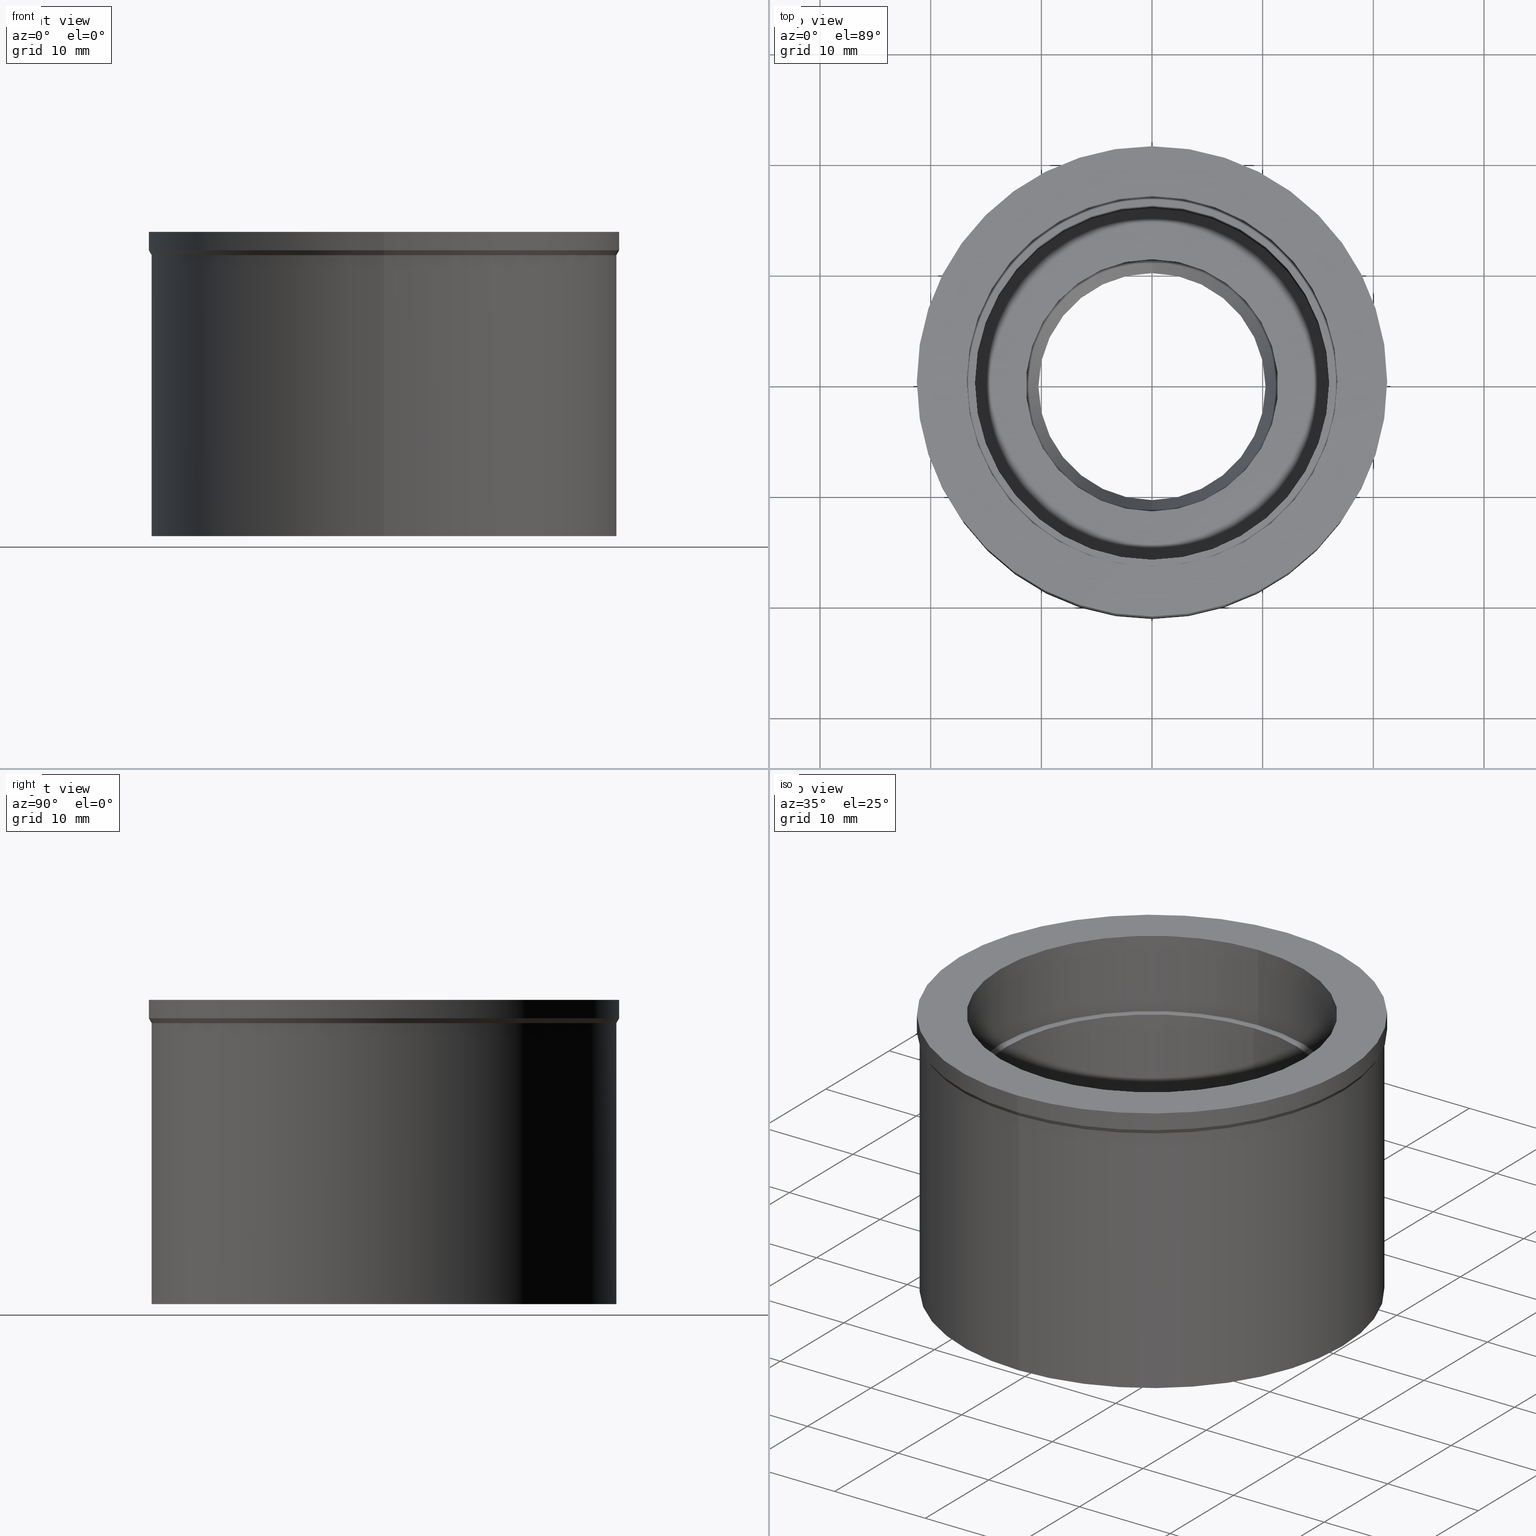
[diagram: canonical four-view strip — front | top / right | iso, engineering-drawing reading convention]
A machine part, canonical four-view strip (front | top / right | iso — engineering-drawing reading convention). The complete STEP part file that produces these views, byte-faithful:
ISO-10303-21;
HEADER;
FILE_DESCRIPTION((''),'2;1');
FILE_NAME('MERN25','2018-05-14T',('ykawabe'),(''),
'CREO PARAMETRIC BY PTC INC, 2016380','CREO PARAMETRIC BY PTC INC, 2016380','');
FILE_SCHEMA(('AUTOMOTIVE_DESIGN { 1 0 10303 214 1 1 1 1 }'));
ENDSEC;
DATA;
#17=DIRECTION('',(0.E0,0.E0,1.E0));
#18=VECTOR('',#17,7.5E0);
#19=CARTESIAN_POINT('',(0.E0,1.675E1,-7.5E0));
#20=LINE('',#19,#18);
#21=DRAUGHTING_PRE_DEFINED_CURVE_FONT('continuous');
#22=CURVE_STYLE('',#21,POSITIVE_LENGTH_MEASURE(2.E-2),#3);
#23=PRESENTATION_STYLE_ASSIGNMENT((#22));
#24=STYLED_ITEM('',(#23),#20);
#25=DIRECTION('',(0.E0,0.E0,1.E0));
#26=VECTOR('',#25,7.5E0);
#27=CARTESIAN_POINT('',(0.E0,-1.675E1,-7.5E0));
#28=LINE('',#27,#26);
#29=CURVE_STYLE('',#21,POSITIVE_LENGTH_MEASURE(2.E-2),#3);
#30=PRESENTATION_STYLE_ASSIGNMENT((#29));
#31=STYLED_ITEM('',(#30),#28);
#32=CARTESIAN_POINT('',(0.E0,0.E0,-7.5E0));
#33=DIRECTION('',(0.E0,0.E0,-1.E0));
#34=DIRECTION('',(0.E0,-1.E0,0.E0));
#35=AXIS2_PLACEMENT_3D('',#32,#33,#34);
#37=CURVE_STYLE('',#21,POSITIVE_LENGTH_MEASURE(2.E-2),#3);
#38=PRESENTATION_STYLE_ASSIGNMENT((#37));
#39=STYLED_ITEM('',(#38),#36);
#40=CARTESIAN_POINT('',(0.E0,0.E0,-7.5E0));
#41=DIRECTION('',(0.E0,0.E0,-1.E0));
#42=DIRECTION('',(0.E0,1.E0,0.E0));
#43=AXIS2_PLACEMENT_3D('',#40,#41,#42);
#45=CURVE_STYLE('',#21,POSITIVE_LENGTH_MEASURE(2.E-2),#3);
#46=PRESENTATION_STYLE_ASSIGNMENT((#45));
#47=STYLED_ITEM('',(#46),#44);
#48=CARTESIAN_POINT('',(0.E0,0.E0,-7.5E0));
#49=DIRECTION('',(0.E0,0.E0,1.E0));
#50=DIRECTION('',(0.E0,-1.E0,0.E0));
#51=AXIS2_PLACEMENT_3D('',#48,#49,#50);
#53=CURVE_STYLE('',#21,POSITIVE_LENGTH_MEASURE(2.E-2),#3);
#54=PRESENTATION_STYLE_ASSIGNMENT((#53));
#55=STYLED_ITEM('',(#54),#52);
#56=CARTESIAN_POINT('',(0.E0,0.E0,-7.5E0));
#57=DIRECTION('',(0.E0,0.E0,1.E0));
#58=DIRECTION('',(0.E0,1.E0,0.E0));
#59=AXIS2_PLACEMENT_3D('',#56,#57,#58);
#61=CURVE_STYLE('',#21,POSITIVE_LENGTH_MEASURE(2.E-2),#3);
#62=PRESENTATION_STYLE_ASSIGNMENT((#61));
#63=STYLED_ITEM('',(#62),#60);
#64=DIRECTION('',(0.E0,0.E0,1.E0));
#65=VECTOR('',#64,1.3E1);
#66=CARTESIAN_POINT('',(0.E0,1.6E1,-2.05E1));
#67=LINE('',#66,#65);
#68=CURVE_STYLE('',#21,POSITIVE_LENGTH_MEASURE(2.E-2),#3);
#69=PRESENTATION_STYLE_ASSIGNMENT((#68));
#70=STYLED_ITEM('',(#69),#67);
#71=DIRECTION('',(0.E0,0.E0,1.E0));
#72=VECTOR('',#71,1.3E1);
#73=CARTESIAN_POINT('',(0.E0,-1.6E1,-2.05E1));
#74=LINE('',#73,#72);
#75=CURVE_STYLE('',#21,POSITIVE_LENGTH_MEASURE(2.E-2),#3);
#76=PRESENTATION_STYLE_ASSIGNMENT((#75));
#77=STYLED_ITEM('',(#76),#74);
#78=CARTESIAN_POINT('',(0.E0,0.E0,-2.05E1));
#79=DIRECTION('',(0.E0,0.E0,-1.E0));
#80=DIRECTION('',(0.E0,-1.E0,0.E0));
#81=AXIS2_PLACEMENT_3D('',#78,#79,#80);
#83=CURVE_STYLE('',#21,POSITIVE_LENGTH_MEASURE(2.E-2),#3);
#84=PRESENTATION_STYLE_ASSIGNMENT((#83));
#85=STYLED_ITEM('',(#84),#82);
#86=CARTESIAN_POINT('',(0.E0,0.E0,-2.05E1));
#87=DIRECTION('',(0.E0,0.E0,-1.E0));
#88=DIRECTION('',(0.E0,1.E0,0.E0));
#89=AXIS2_PLACEMENT_3D('',#86,#87,#88);
#91=CURVE_STYLE('',#21,POSITIVE_LENGTH_MEASURE(2.E-2),#3);
#92=PRESENTATION_STYLE_ASSIGNMENT((#91));
#93=STYLED_ITEM('',(#92),#90);
#94=CARTESIAN_POINT('',(0.E0,0.E0,-2.05E1));
#95=DIRECTION('',(0.E0,0.E0,1.E0));
#96=DIRECTION('',(0.E0,-1.E0,0.E0));
#97=AXIS2_PLACEMENT_3D('',#94,#95,#96);
#99=CURVE_STYLE('',#21,POSITIVE_LENGTH_MEASURE(2.E-2),#3);
#100=PRESENTATION_STYLE_ASSIGNMENT((#99));
#101=STYLED_ITEM('',(#100),#98);
#102=CARTESIAN_POINT('',(0.E0,0.E0,-2.05E1));
#103=DIRECTION('',(0.E0,0.E0,1.E0));
#104=DIRECTION('',(0.E0,1.E0,0.E0));
#105=AXIS2_PLACEMENT_3D('',#102,#103,#104);
#107=CURVE_STYLE('',#21,POSITIVE_LENGTH_MEASURE(2.E-2),#3);
#108=PRESENTATION_STYLE_ASSIGNMENT((#107));
#109=STYLED_ITEM('',(#108),#106);
#110=DIRECTION('',(0.E0,0.E0,1.E0));
#111=VECTOR('',#110,1.3E0);
#112=CARTESIAN_POINT('',(0.E0,1.14E1,-2.18E1));
#113=LINE('',#112,#111);
#114=CURVE_STYLE('',#21,POSITIVE_LENGTH_MEASURE(2.E-2),#3);
#115=PRESENTATION_STYLE_ASSIGNMENT((#114));
#116=STYLED_ITEM('',(#115),#113);
#117=DIRECTION('',(0.E0,0.E0,1.E0));
#118=VECTOR('',#117,1.3E0);
#119=CARTESIAN_POINT('',(0.E0,-1.14E1,-2.18E1));
#120=LINE('',#119,#118);
#121=CURVE_STYLE('',#21,POSITIVE_LENGTH_MEASURE(2.E-2),#3);
#122=PRESENTATION_STYLE_ASSIGNMENT((#121));
#123=STYLED_ITEM('',(#122),#120);
#124=CARTESIAN_POINT('',(0.E0,0.E0,-2.18E1));
#125=DIRECTION('',(0.E0,0.E0,1.E0));
#126=DIRECTION('',(0.E0,-1.E0,0.E0));
#127=AXIS2_PLACEMENT_3D('',#124,#125,#126);
#129=CURVE_STYLE('',#21,POSITIVE_LENGTH_MEASURE(2.E-2),#3);
#130=PRESENTATION_STYLE_ASSIGNMENT((#129));
#131=STYLED_ITEM('',(#130),#128);
#132=CARTESIAN_POINT('',(0.E0,0.E0,-2.18E1));
#133=DIRECTION('',(0.E0,0.E0,1.E0));
#134=DIRECTION('',(0.E0,1.E0,0.E0));
#135=AXIS2_PLACEMENT_3D('',#132,#133,#134);
#137=CURVE_STYLE('',#21,POSITIVE_LENGTH_MEASURE(2.E-2),#3);
#138=PRESENTATION_STYLE_ASSIGNMENT((#137));
#139=STYLED_ITEM('',(#138),#136);
#140=CARTESIAN_POINT('',(0.E0,0.E0,-2.18E1));
#141=DIRECTION('',(0.E0,0.E0,-1.E0));
#142=DIRECTION('',(0.E0,-1.E0,0.E0));
#143=AXIS2_PLACEMENT_3D('',#140,#141,#142);
#145=CURVE_STYLE('',#21,POSITIVE_LENGTH_MEASURE(2.E-2),#3);
#146=PRESENTATION_STYLE_ASSIGNMENT((#145));
#147=STYLED_ITEM('',(#146),#144);
#148=CARTESIAN_POINT('',(0.E0,0.E0,-2.18E1));
#149=DIRECTION('',(0.E0,0.E0,-1.E0));
#150=DIRECTION('',(0.E0,1.E0,0.E0));
#151=AXIS2_PLACEMENT_3D('',#148,#149,#150);
#153=CURVE_STYLE('',#21,POSITIVE_LENGTH_MEASURE(2.E-2),#3);
#154=PRESENTATION_STYLE_ASSIGNMENT((#153));
#155=STYLED_ITEM('',(#154),#152);
#156=DIRECTION('',(0.E0,0.E0,1.E0));
#157=VECTOR('',#156,1.25E0);
#158=CARTESIAN_POINT('',(0.E0,1.345E1,-2.305E1));
#159=LINE('',#158,#157);
#160=CURVE_STYLE('',#21,POSITIVE_LENGTH_MEASURE(2.E-2),#3);
#161=PRESENTATION_STYLE_ASSIGNMENT((#160));
#162=STYLED_ITEM('',(#161),#159);
#163=DIRECTION('',(0.E0,0.E0,1.E0));
#164=VECTOR('',#163,1.25E0);
#165=CARTESIAN_POINT('',(0.E0,-1.345E1,-2.305E1));
#166=LINE('',#165,#164);
#167=CURVE_STYLE('',#21,POSITIVE_LENGTH_MEASURE(2.E-2),#3);
#168=PRESENTATION_STYLE_ASSIGNMENT((#167));
#169=STYLED_ITEM('',(#168),#166);
#170=CARTESIAN_POINT('',(0.E0,0.E0,-2.305E1));
#171=DIRECTION('',(0.E0,0.E0,-1.E0));
#172=DIRECTION('',(0.E0,-1.E0,0.E0));
#173=AXIS2_PLACEMENT_3D('',#170,#171,#172);
#175=CURVE_STYLE('',#21,POSITIVE_LENGTH_MEASURE(2.E-2),#3);
#176=PRESENTATION_STYLE_ASSIGNMENT((#175));
#177=STYLED_ITEM('',(#176),#174);
#178=CARTESIAN_POINT('',(0.E0,0.E0,-2.305E1));
#179=DIRECTION('',(0.E0,0.E0,-1.E0));
#180=DIRECTION('',(0.E0,1.E0,0.E0));
#181=AXIS2_PLACEMENT_3D('',#178,#179,#180);
#183=CURVE_STYLE('',#21,POSITIVE_LENGTH_MEASURE(2.E-2),#3);
#184=PRESENTATION_STYLE_ASSIGNMENT((#183));
#185=STYLED_ITEM('',(#184),#182);
#186=CARTESIAN_POINT('',(0.E0,0.E0,-2.305E1));
#187=DIRECTION('',(0.E0,0.E0,1.E0));
#188=DIRECTION('',(0.E0,-1.E0,0.E0));
#189=AXIS2_PLACEMENT_3D('',#186,#187,#188);
#191=CURVE_STYLE('',#21,POSITIVE_LENGTH_MEASURE(2.E-2),#3);
#192=PRESENTATION_STYLE_ASSIGNMENT((#191));
#193=STYLED_ITEM('',(#192),#190);
#194=CARTESIAN_POINT('',(0.E0,0.E0,-2.305E1));
#195=DIRECTION('',(0.E0,0.E0,1.E0));
#196=DIRECTION('',(0.E0,1.E0,0.E0));
#197=AXIS2_PLACEMENT_3D('',#194,#195,#196);
#199=CURVE_STYLE('',#21,POSITIVE_LENGTH_MEASURE(2.E-2),#3);
#200=PRESENTATION_STYLE_ASSIGNMENT((#199));
#201=STYLED_ITEM('',(#200),#198);
#202=DIRECTION('',(0.E0,4.999999999998E-1,8.660254037846E-1));
#203=VECTOR('',#202,4.654597870205E0);
#204=CARTESIAN_POINT('',(0.E0,1.026320106490E1,-2.7081E1));
#205=LINE('',#204,#203);
#206=CURVE_STYLE('',#21,POSITIVE_LENGTH_MEASURE(2.E-2),#3);
#207=PRESENTATION_STYLE_ASSIGNMENT((#206));
#208=STYLED_ITEM('',(#207),#205);
#209=CARTESIAN_POINT('',(0.E0,0.E0,-2.7081E1));
#210=DIRECTION('',(0.E0,0.E0,1.E0));
#211=DIRECTION('',(0.E0,-1.E0,0.E0));
#212=AXIS2_PLACEMENT_3D('',#209,#210,#211);
#214=CURVE_STYLE('',#21,POSITIVE_LENGTH_MEASURE(2.E-2),#3);
#215=PRESENTATION_STYLE_ASSIGNMENT((#214));
#216=STYLED_ITEM('',(#215),#213);
#217=CARTESIAN_POINT('',(0.E0,0.E0,-2.7081E1));
#218=DIRECTION('',(0.E0,0.E0,1.E0));
#219=DIRECTION('',(0.E0,1.E0,0.E0));
#220=AXIS2_PLACEMENT_3D('',#217,#218,#219);
#222=CURVE_STYLE('',#21,POSITIVE_LENGTH_MEASURE(2.E-2),#3);
#223=PRESENTATION_STYLE_ASSIGNMENT((#222));
#224=STYLED_ITEM('',(#223),#221);
#225=DIRECTION('',(0.E0,-4.999999999998E-1,8.660254037846E-1));
#226=VECTOR('',#225,4.654597870205E0);
#227=CARTESIAN_POINT('',(0.E0,-1.026320106490E1,-2.7081E1));
#228=LINE('',#227,#226);
#229=CURVE_STYLE('',#21,POSITIVE_LENGTH_MEASURE(2.E-2),#3);
#230=PRESENTATION_STYLE_ASSIGNMENT((#229));
#231=STYLED_ITEM('',(#230),#228);
#232=DIRECTION('',(0.E0,1.521985931609E-12,1.E0));
#233=VECTOR('',#232,4.190000000004E-1);
#234=CARTESIAN_POINT('',(0.E0,-1.026320106490E1,-2.75E1));
#235=LINE('',#234,#233);
#236=CURVE_STYLE('',#21,POSITIVE_LENGTH_MEASURE(2.E-2),#3);
#237=PRESENTATION_STYLE_ASSIGNMENT((#236));
#238=STYLED_ITEM('',(#237),#235);
#239=DIRECTION('',(0.E0,-1.521985931609E-12,1.E0));
#240=VECTOR('',#239,4.190000000004E-1);
#241=CARTESIAN_POINT('',(0.E0,1.026320106490E1,-2.75E1));
#242=LINE('',#241,#240);
#243=CURVE_STYLE('',#21,POSITIVE_LENGTH_MEASURE(2.E-2),#3);
#244=PRESENTATION_STYLE_ASSIGNMENT((#243));
#245=STYLED_ITEM('',(#244),#242);
#246=CARTESIAN_POINT('',(0.E0,0.E0,-2.75E1));
#247=DIRECTION('',(0.E0,0.E0,1.E0));
#248=DIRECTION('',(0.E0,-1.E0,0.E0));
#249=AXIS2_PLACEMENT_3D('',#246,#247,#248);
#251=CURVE_STYLE('',#21,POSITIVE_LENGTH_MEASURE(2.E-2),#3);
#252=PRESENTATION_STYLE_ASSIGNMENT((#251));
#253=STYLED_ITEM('',(#252),#250);
#254=CARTESIAN_POINT('',(0.E0,0.E0,-2.75E1));
#255=DIRECTION('',(0.E0,0.E0,1.E0));
#256=DIRECTION('',(0.E0,1.E0,0.E0));
#257=AXIS2_PLACEMENT_3D('',#254,#255,#256);
#259=CURVE_STYLE('',#21,POSITIVE_LENGTH_MEASURE(2.E-2),#3);
#260=PRESENTATION_STYLE_ASSIGNMENT((#259));
#261=STYLED_ITEM('',(#260),#258);
#262=CARTESIAN_POINT('',(0.E0,0.E0,-2.75E1));
#263=DIRECTION('',(0.E0,0.E0,-1.E0));
#264=DIRECTION('',(0.E0,-1.E0,0.E0));
#265=AXIS2_PLACEMENT_3D('',#262,#263,#264);
#267=CURVE_STYLE('',#21,POSITIVE_LENGTH_MEASURE(2.E-2),#3);
#268=PRESENTATION_STYLE_ASSIGNMENT((#267));
#269=STYLED_ITEM('',(#268),#266);
#270=CARTESIAN_POINT('',(0.E0,0.E0,-2.75E1));
#271=DIRECTION('',(0.E0,0.E0,-1.E0));
#272=DIRECTION('',(0.E0,1.E0,0.E0));
#273=AXIS2_PLACEMENT_3D('',#270,#271,#272);
#275=CURVE_STYLE('',#21,POSITIVE_LENGTH_MEASURE(2.E-2),#3);
#276=PRESENTATION_STYLE_ASSIGNMENT((#275));
#277=STYLED_ITEM('',(#276),#274);
#278=DIRECTION('',(0.E0,0.E0,-1.E0));
#279=VECTOR('',#278,2.54E1);
#280=CARTESIAN_POINT('',(0.E0,2.1E1,-2.1E0));
#281=LINE('',#280,#279);
#282=CURVE_STYLE('',#21,POSITIVE_LENGTH_MEASURE(2.E-2),#3);
#283=PRESENTATION_STYLE_ASSIGNMENT((#282));
#284=STYLED_ITEM('',(#283),#281);
#285=DIRECTION('',(0.E0,0.E0,-1.E0));
#286=VECTOR('',#285,2.54E1);
#287=CARTESIAN_POINT('',(0.E0,-2.1E1,-2.1E0));
#288=LINE('',#287,#286);
#289=CURVE_STYLE('',#21,POSITIVE_LENGTH_MEASURE(2.E-2),#3);
#290=PRESENTATION_STYLE_ASSIGNMENT((#289));
#291=STYLED_ITEM('',(#290),#288);
#292=CARTESIAN_POINT('',(0.E0,0.E0,-1.666987298108E0));
#293=DIRECTION('',(0.E0,0.E0,1.E0));
#294=DIRECTION('',(0.E0,1.E0,0.E0));
#295=AXIS2_PLACEMENT_3D('',#292,#293,#294);
#297=CURVE_STYLE('',#21,POSITIVE_LENGTH_MEASURE(2.E-2),#3);
#298=PRESENTATION_STYLE_ASSIGNMENT((#297));
#299=STYLED_ITEM('',(#298),#296);
#300=DIRECTION('',(0.E0,5.000000000001E-1,-8.660254037844E-1));
#301=VECTOR('',#300,4.999999999998E-1);
#302=CARTESIAN_POINT('',(0.E0,-2.125E1,-1.666987298108E0));
#303=LINE('',#302,#301);
#304=CURVE_STYLE('',#21,POSITIVE_LENGTH_MEASURE(2.E-2),#3);
#305=PRESENTATION_STYLE_ASSIGNMENT((#304));
#306=STYLED_ITEM('',(#305),#303);
#307=CARTESIAN_POINT('',(0.E0,0.E0,-2.1E0));
#308=DIRECTION('',(0.E0,0.E0,-1.E0));
#309=DIRECTION('',(0.E0,-1.E0,0.E0));
#310=AXIS2_PLACEMENT_3D('',#307,#308,#309);
#312=CURVE_STYLE('',#21,POSITIVE_LENGTH_MEASURE(2.E-2),#3);
#313=PRESENTATION_STYLE_ASSIGNMENT((#312));
#314=STYLED_ITEM('',(#313),#311);
#315=DIRECTION('',(0.E0,-5.000000000001E-1,-8.660254037844E-1));
#316=VECTOR('',#315,4.999999999998E-1);
#317=CARTESIAN_POINT('',(0.E0,2.125E1,-1.666987298108E0));
#318=LINE('',#317,#316);
#319=CURVE_STYLE('',#21,POSITIVE_LENGTH_MEASURE(2.E-2),#3);
#320=PRESENTATION_STYLE_ASSIGNMENT((#319));
#321=STYLED_ITEM('',(#320),#318);
#322=CARTESIAN_POINT('',(0.E0,0.E0,-2.1E0));
#323=DIRECTION('',(0.E0,0.E0,-1.E0));
#324=DIRECTION('',(0.E0,1.E0,0.E0));
#325=AXIS2_PLACEMENT_3D('',#322,#323,#324);
#327=CURVE_STYLE('',#21,POSITIVE_LENGTH_MEASURE(2.E-2),#3);
#328=PRESENTATION_STYLE_ASSIGNMENT((#327));
#329=STYLED_ITEM('',(#328),#326);
#330=CARTESIAN_POINT('',(0.E0,0.E0,-1.666987298108E0));
#331=DIRECTION('',(0.E0,0.E0,1.E0));
#332=DIRECTION('',(0.E0,-1.E0,0.E0));
#333=AXIS2_PLACEMENT_3D('',#330,#331,#332);
#335=CURVE_STYLE('',#21,POSITIVE_LENGTH_MEASURE(2.E-2),#3);
#336=PRESENTATION_STYLE_ASSIGNMENT((#335));
#337=STYLED_ITEM('',(#336),#334);
#338=DIRECTION('',(0.E0,-1.278730923565E-14,-1.E0));
#339=VECTOR('',#338,1.666987298108E0);
#340=CARTESIAN_POINT('',(0.E0,2.125E1,0.E0));
#341=LINE('',#340,#339);
#342=CURVE_STYLE('',#21,POSITIVE_LENGTH_MEASURE(2.E-2),#3);
#343=PRESENTATION_STYLE_ASSIGNMENT((#342));
#344=STYLED_ITEM('',(#343),#341);
#345=DIRECTION('',(0.E0,1.278730923565E-14,-1.E0));
#346=VECTOR('',#345,1.666987298108E0);
#347=CARTESIAN_POINT('',(0.E0,-2.125E1,0.E0));
#348=LINE('',#347,#346);
#349=CURVE_STYLE('',#21,POSITIVE_LENGTH_MEASURE(2.E-2),#3);
#350=PRESENTATION_STYLE_ASSIGNMENT((#349));
#351=STYLED_ITEM('',(#350),#348);
#352=CARTESIAN_POINT('',(0.E0,0.E0,0.E0));
#353=DIRECTION('',(0.E0,0.E0,-1.E0));
#354=DIRECTION('',(0.E0,-1.E0,0.E0));
#355=AXIS2_PLACEMENT_3D('',#352,#353,#354);
#357=CURVE_STYLE('',#21,POSITIVE_LENGTH_MEASURE(2.E-2),#3);
#358=PRESENTATION_STYLE_ASSIGNMENT((#357));
#359=STYLED_ITEM('',(#358),#356);
#360=CARTESIAN_POINT('',(0.E0,0.E0,0.E0));
#361=DIRECTION('',(0.E0,0.E0,-1.E0));
#362=DIRECTION('',(0.E0,1.E0,0.E0));
#363=AXIS2_PLACEMENT_3D('',#360,#361,#362);
#365=CURVE_STYLE('',#21,POSITIVE_LENGTH_MEASURE(2.E-2),#3);
#366=PRESENTATION_STYLE_ASSIGNMENT((#365));
#367=STYLED_ITEM('',(#366),#364);
#368=CARTESIAN_POINT('',(0.E0,0.E0,0.E0));
#369=DIRECTION('',(0.E0,0.E0,1.E0));
#370=DIRECTION('',(0.E0,-1.E0,0.E0));
#371=AXIS2_PLACEMENT_3D('',#368,#369,#370);
#373=CURVE_STYLE('',#21,POSITIVE_LENGTH_MEASURE(2.E-2),#3);
#374=PRESENTATION_STYLE_ASSIGNMENT((#373));
#375=STYLED_ITEM('',(#374),#372);
#376=CARTESIAN_POINT('',(0.E0,0.E0,0.E0));
#377=DIRECTION('',(0.E0,0.E0,1.E0));
#378=DIRECTION('',(0.E0,1.E0,0.E0));
#379=AXIS2_PLACEMENT_3D('',#376,#377,#378);
#381=CURVE_STYLE('',#21,POSITIVE_LENGTH_MEASURE(2.E-2),#3);
#382=PRESENTATION_STYLE_ASSIGNMENT((#381));
#383=STYLED_ITEM('',(#382),#380);
#384=CARTESIAN_POINT('',(0.E0,1.675E1,-7.5E0));
#385=CARTESIAN_POINT('',(0.E0,1.675E1,0.E0));
#386=VERTEX_POINT('',#384);
#387=VERTEX_POINT('',#385);
#388=CARTESIAN_POINT('',(0.E0,-1.675E1,0.E0));
#389=VERTEX_POINT('',#388);
#390=CARTESIAN_POINT('',(0.E0,-1.675E1,-7.5E0));
#391=VERTEX_POINT('',#390);
#392=CARTESIAN_POINT('',(0.E0,-1.6E1,-7.5E0));
#393=CARTESIAN_POINT('',(0.E0,1.6E1,-7.5E0));
#394=VERTEX_POINT('',#392);
#395=VERTEX_POINT('',#393);
#396=CARTESIAN_POINT('',(0.E0,1.6E1,-2.05E1));
#397=VERTEX_POINT('',#396);
#398=CARTESIAN_POINT('',(0.E0,-1.6E1,-2.05E1));
#399=VERTEX_POINT('',#398);
#400=CARTESIAN_POINT('',(0.E0,-1.14E1,-2.05E1));
#401=CARTESIAN_POINT('',(0.E0,1.14E1,-2.05E1));
#402=VERTEX_POINT('',#400);
#403=VERTEX_POINT('',#401);
#404=CARTESIAN_POINT('',(0.E0,1.14E1,-2.18E1));
#405=VERTEX_POINT('',#404);
#406=CARTESIAN_POINT('',(0.E0,-1.14E1,-2.18E1));
#407=VERTEX_POINT('',#406);
#408=CARTESIAN_POINT('',(0.E0,-1.345E1,-2.18E1));
#409=CARTESIAN_POINT('',(0.E0,1.345E1,-2.18E1));
#410=VERTEX_POINT('',#408);
#411=VERTEX_POINT('',#409);
#412=CARTESIAN_POINT('',(0.E0,1.345E1,-2.305E1));
#413=VERTEX_POINT('',#412);
#414=CARTESIAN_POINT('',(0.E0,-1.345E1,-2.305E1));
#415=VERTEX_POINT('',#414);
#416=CARTESIAN_POINT('',(0.E0,-1.25905E1,-2.305E1));
#417=CARTESIAN_POINT('',(0.E0,1.25905E1,-2.305E1));
#418=VERTEX_POINT('',#416);
#419=VERTEX_POINT('',#417);
#420=CARTESIAN_POINT('',(0.E0,1.026320106490E1,-2.7081E1));
#421=VERTEX_POINT('',#420);
#422=CARTESIAN_POINT('',(0.E0,-1.026320106490E1,-2.7081E1));
#423=VERTEX_POINT('',#422);
#424=CARTESIAN_POINT('',(0.E0,1.026320106490E1,-2.75E1));
#425=VERTEX_POINT('',#424);
#426=CARTESIAN_POINT('',(0.E0,-1.026320106490E1,-2.75E1));
#427=VERTEX_POINT('',#426);
#428=CARTESIAN_POINT('',(0.E0,-2.1E1,-2.75E1));
#429=CARTESIAN_POINT('',(0.E0,2.1E1,-2.75E1));
#430=VERTEX_POINT('',#428);
#431=VERTEX_POINT('',#429);
#432=CARTESIAN_POINT('',(0.E0,2.1E1,-2.1E0));
#433=VERTEX_POINT('',#432);
#434=CARTESIAN_POINT('',(0.E0,-2.1E1,-2.1E0));
#435=VERTEX_POINT('',#434);
#436=CARTESIAN_POINT('',(0.E0,2.125E1,-1.666987298108E0));
#437=VERTEX_POINT('',#436);
#438=CARTESIAN_POINT('',(0.E0,-2.125E1,-1.666987298108E0));
#439=VERTEX_POINT('',#438);
#440=CARTESIAN_POINT('',(0.E0,2.125E1,0.E0));
#441=VERTEX_POINT('',#440);
#442=CARTESIAN_POINT('',(0.E0,-2.125E1,0.E0));
#443=VERTEX_POINT('',#442);
#444=CARTESIAN_POINT('',(0.E0,0.E0,1.375E0));
#445=DIRECTION('',(0.E0,0.E0,-1.E0));
#446=DIRECTION('',(0.E0,-1.E0,0.E0));
#447=AXIS2_PLACEMENT_3D('',#444,#445,#446);
#448=CYLINDRICAL_SURFACE('',#447,1.675E1);
#450=ORIENTED_EDGE('',*,*,#449,.T.);
#452=ORIENTED_EDGE('',*,*,#451,.F.);
#454=ORIENTED_EDGE('',*,*,#453,.F.);
#456=ORIENTED_EDGE('',*,*,#455,.F.);
#457=EDGE_LOOP('',(#450,#452,#454,#456));
#458=FACE_OUTER_BOUND('',#457,.F.);
#460=CARTESIAN_POINT('',(0.E0,0.E0,1.375E0));
#461=DIRECTION('',(0.E0,0.E0,-1.E0));
#462=DIRECTION('',(0.E0,-1.E0,0.E0));
#463=AXIS2_PLACEMENT_3D('',#460,#461,#462);
#464=CYLINDRICAL_SURFACE('',#463,1.675E1);
#465=ORIENTED_EDGE('',*,*,#449,.F.);
#467=ORIENTED_EDGE('',*,*,#466,.F.);
#468=ORIENTED_EDGE('',*,*,#453,.T.);
#470=ORIENTED_EDGE('',*,*,#469,.F.);
#471=EDGE_LOOP('',(#465,#467,#468,#470));
#472=FACE_OUTER_BOUND('',#471,.F.);
#474=CARTESIAN_POINT('',(0.E0,0.E0,-7.5E0));
#475=DIRECTION('',(0.E0,0.E0,-1.E0));
#476=DIRECTION('',(0.E0,-1.E0,0.E0));
#477=AXIS2_PLACEMENT_3D('',#474,#475,#476);
#478=PLANE('',#477);
#479=ORIENTED_EDGE('',*,*,#466,.T.);
#480=ORIENTED_EDGE('',*,*,#455,.T.);
#481=EDGE_LOOP('',(#479,#480));
#482=FACE_OUTER_BOUND('',#481,.F.);
#484=ORIENTED_EDGE('',*,*,#483,.T.);
#486=ORIENTED_EDGE('',*,*,#485,.T.);
#487=EDGE_LOOP('',(#484,#486));
#488=FACE_BOUND('',#487,.F.);
#490=CARTESIAN_POINT('',(0.E0,0.E0,1.375E0));
#491=DIRECTION('',(0.E0,0.E0,-1.E0));
#492=DIRECTION('',(0.E0,-1.E0,0.E0));
#493=AXIS2_PLACEMENT_3D('',#490,#491,#492);
#494=CYLINDRICAL_SURFACE('',#493,1.6E1);
#496=ORIENTED_EDGE('',*,*,#495,.T.);
#497=ORIENTED_EDGE('',*,*,#483,.F.);
#499=ORIENTED_EDGE('',*,*,#498,.F.);
#501=ORIENTED_EDGE('',*,*,#500,.F.);
#502=EDGE_LOOP('',(#496,#497,#499,#501));
#503=FACE_OUTER_BOUND('',#502,.F.);
#505=CARTESIAN_POINT('',(0.E0,0.E0,1.375E0));
#506=DIRECTION('',(0.E0,0.E0,-1.E0));
#507=DIRECTION('',(0.E0,-1.E0,0.E0));
#508=AXIS2_PLACEMENT_3D('',#505,#506,#507);
#509=CYLINDRICAL_SURFACE('',#508,1.6E1);
#510=ORIENTED_EDGE('',*,*,#495,.F.);
#512=ORIENTED_EDGE('',*,*,#511,.F.);
#513=ORIENTED_EDGE('',*,*,#498,.T.);
#514=ORIENTED_EDGE('',*,*,#485,.F.);
#515=EDGE_LOOP('',(#510,#512,#513,#514));
#516=FACE_OUTER_BOUND('',#515,.F.);
#518=CARTESIAN_POINT('',(0.E0,0.E0,-2.05E1));
#519=DIRECTION('',(0.E0,0.E0,-1.E0));
#520=DIRECTION('',(0.E0,-1.E0,0.E0));
#521=AXIS2_PLACEMENT_3D('',#518,#519,#520);
#522=PLANE('',#521);
#523=ORIENTED_EDGE('',*,*,#511,.T.);
#524=ORIENTED_EDGE('',*,*,#500,.T.);
#525=EDGE_LOOP('',(#523,#524));
#526=FACE_OUTER_BOUND('',#525,.F.);
#528=ORIENTED_EDGE('',*,*,#527,.T.);
#530=ORIENTED_EDGE('',*,*,#529,.T.);
#531=EDGE_LOOP('',(#528,#530));
#532=FACE_BOUND('',#531,.F.);
#534=CARTESIAN_POINT('',(0.E0,0.E0,1.375E0));
#535=DIRECTION('',(0.E0,0.E0,-1.E0));
#536=DIRECTION('',(0.E0,-1.E0,0.E0));
#537=AXIS2_PLACEMENT_3D('',#534,#535,#536);
#538=CYLINDRICAL_SURFACE('',#537,1.14E1);
#540=ORIENTED_EDGE('',*,*,#539,.T.);
#541=ORIENTED_EDGE('',*,*,#527,.F.);
#543=ORIENTED_EDGE('',*,*,#542,.F.);
#545=ORIENTED_EDGE('',*,*,#544,.F.);
#546=EDGE_LOOP('',(#540,#541,#543,#545));
#547=FACE_OUTER_BOUND('',#546,.F.);
#549=CARTESIAN_POINT('',(0.E0,0.E0,1.375E0));
#550=DIRECTION('',(0.E0,0.E0,-1.E0));
#551=DIRECTION('',(0.E0,-1.E0,0.E0));
#552=AXIS2_PLACEMENT_3D('',#549,#550,#551);
#553=CYLINDRICAL_SURFACE('',#552,1.14E1);
#554=ORIENTED_EDGE('',*,*,#539,.F.);
#556=ORIENTED_EDGE('',*,*,#555,.F.);
#557=ORIENTED_EDGE('',*,*,#542,.T.);
#558=ORIENTED_EDGE('',*,*,#529,.F.);
#559=EDGE_LOOP('',(#554,#556,#557,#558));
#560=FACE_OUTER_BOUND('',#559,.F.);
#562=CARTESIAN_POINT('',(0.E0,0.E0,-2.18E1));
#563=DIRECTION('',(0.E0,0.E0,-1.E0));
#564=DIRECTION('',(0.E0,-1.E0,0.E0));
#565=AXIS2_PLACEMENT_3D('',#562,#563,#564);
#566=PLANE('',#565);
#568=ORIENTED_EDGE('',*,*,#567,.T.);
#570=ORIENTED_EDGE('',*,*,#569,.T.);
#571=EDGE_LOOP('',(#568,#570));
#572=FACE_OUTER_BOUND('',#571,.F.);
#573=ORIENTED_EDGE('',*,*,#555,.T.);
#574=ORIENTED_EDGE('',*,*,#544,.T.);
#575=EDGE_LOOP('',(#573,#574));
#576=FACE_BOUND('',#575,.F.);
#578=CARTESIAN_POINT('',(0.E0,0.E0,1.375E0));
#579=DIRECTION('',(0.E0,0.E0,-1.E0));
#580=DIRECTION('',(0.E0,-1.E0,0.E0));
#581=AXIS2_PLACEMENT_3D('',#578,#579,#580);
#582=CYLINDRICAL_SURFACE('',#581,1.345E1);
#584=ORIENTED_EDGE('',*,*,#583,.T.);
#585=ORIENTED_EDGE('',*,*,#567,.F.);
#587=ORIENTED_EDGE('',*,*,#586,.F.);
#589=ORIENTED_EDGE('',*,*,#588,.F.);
#590=EDGE_LOOP('',(#584,#585,#587,#589));
#591=FACE_OUTER_BOUND('',#590,.F.);
#593=CARTESIAN_POINT('',(0.E0,0.E0,1.375E0));
#594=DIRECTION('',(0.E0,0.E0,-1.E0));
#595=DIRECTION('',(0.E0,-1.E0,0.E0));
#596=AXIS2_PLACEMENT_3D('',#593,#594,#595);
#597=CYLINDRICAL_SURFACE('',#596,1.345E1);
#598=ORIENTED_EDGE('',*,*,#583,.F.);
#600=ORIENTED_EDGE('',*,*,#599,.F.);
#601=ORIENTED_EDGE('',*,*,#586,.T.);
#602=ORIENTED_EDGE('',*,*,#569,.F.);
#603=EDGE_LOOP('',(#598,#600,#601,#602));
#604=FACE_OUTER_BOUND('',#603,.F.);
#606=CARTESIAN_POINT('',(0.E0,0.E0,-2.305E1));
#607=DIRECTION('',(0.E0,0.E0,-1.E0));
#608=DIRECTION('',(0.E0,-1.E0,0.E0));
#609=AXIS2_PLACEMENT_3D('',#606,#607,#608);
#610=PLANE('',#609);
#611=ORIENTED_EDGE('',*,*,#599,.T.);
#612=ORIENTED_EDGE('',*,*,#588,.T.);
#613=EDGE_LOOP('',(#611,#612));
#614=FACE_OUTER_BOUND('',#613,.F.);
#616=ORIENTED_EDGE('',*,*,#615,.T.);
#618=ORIENTED_EDGE('',*,*,#617,.T.);
#619=EDGE_LOOP('',(#616,#618));
#620=FACE_BOUND('',#619,.F.);
#622=CARTESIAN_POINT('',(0.E0,0.E0,-2.50655E1));
#623=DIRECTION('',(0.E0,0.E0,1.E0));
#624=DIRECTION('',(0.E0,1.E0,0.E0));
#625=AXIS2_PLACEMENT_3D('',#622,#623,#624);
#626=CONICAL_SURFACE('',#625,1.142685053245E1,3.E1);
#628=ORIENTED_EDGE('',*,*,#627,.T.);
#629=ORIENTED_EDGE('',*,*,#615,.F.);
#631=ORIENTED_EDGE('',*,*,#630,.F.);
#633=ORIENTED_EDGE('',*,*,#632,.T.);
#634=EDGE_LOOP('',(#628,#629,#631,#633));
#635=FACE_OUTER_BOUND('',#634,.F.);
#637=CARTESIAN_POINT('',(0.E0,0.E0,-2.50655E1));
#638=DIRECTION('',(0.E0,0.E0,1.E0));
#639=DIRECTION('',(0.E0,1.E0,0.E0));
#640=AXIS2_PLACEMENT_3D('',#637,#638,#639);
#641=CONICAL_SURFACE('',#640,1.142685053245E1,3.E1);
#642=ORIENTED_EDGE('',*,*,#627,.F.);
#644=ORIENTED_EDGE('',*,*,#643,.T.);
#645=ORIENTED_EDGE('',*,*,#630,.T.);
#646=ORIENTED_EDGE('',*,*,#617,.F.);
#647=EDGE_LOOP('',(#642,#644,#645,#646));
#648=FACE_OUTER_BOUND('',#647,.F.);
#650=CARTESIAN_POINT('',(0.E0,0.E0,1.375E0));
#651=DIRECTION('',(0.E0,0.E0,-1.E0));
#652=DIRECTION('',(0.E0,-1.E0,0.E0));
#653=AXIS2_PLACEMENT_3D('',#650,#651,#652);
#654=CYLINDRICAL_SURFACE('',#653,1.026320106490E1);
#656=ORIENTED_EDGE('',*,*,#655,.F.);
#658=ORIENTED_EDGE('',*,*,#657,.F.);
#660=ORIENTED_EDGE('',*,*,#659,.T.);
#661=ORIENTED_EDGE('',*,*,#643,.F.);
#662=EDGE_LOOP('',(#656,#658,#660,#661));
#663=FACE_OUTER_BOUND('',#662,.F.);
#665=CARTESIAN_POINT('',(0.E0,0.E0,1.375E0));
#666=DIRECTION('',(0.E0,0.E0,-1.E0));
#667=DIRECTION('',(0.E0,-1.E0,0.E0));
#668=AXIS2_PLACEMENT_3D('',#665,#666,#667);
#669=CYLINDRICAL_SURFACE('',#668,1.026320106490E1);
#670=ORIENTED_EDGE('',*,*,#655,.T.);
#671=ORIENTED_EDGE('',*,*,#632,.F.);
#672=ORIENTED_EDGE('',*,*,#659,.F.);
#674=ORIENTED_EDGE('',*,*,#673,.F.);
#675=EDGE_LOOP('',(#670,#671,#672,#674));
#676=FACE_OUTER_BOUND('',#675,.F.);
#678=CARTESIAN_POINT('',(0.E0,0.E0,-2.75E1));
#679=DIRECTION('',(0.E0,0.E0,-1.E0));
#680=DIRECTION('',(0.E0,-1.E0,0.E0));
#681=AXIS2_PLACEMENT_3D('',#678,#679,#680);
#682=PLANE('',#681);
#684=ORIENTED_EDGE('',*,*,#683,.T.);
#686=ORIENTED_EDGE('',*,*,#685,.T.);
#687=EDGE_LOOP('',(#684,#686));
#688=FACE_OUTER_BOUND('',#687,.F.);
#689=ORIENTED_EDGE('',*,*,#657,.T.);
#690=ORIENTED_EDGE('',*,*,#673,.T.);
#691=EDGE_LOOP('',(#689,#690));
#692=FACE_BOUND('',#691,.F.);
#694=CARTESIAN_POINT('',(0.E0,0.E0,1.375E0));
#695=DIRECTION('',(0.E0,0.E0,-1.E0));
#696=DIRECTION('',(0.E0,-1.E0,0.E0));
#697=AXIS2_PLACEMENT_3D('',#694,#695,#696);
#698=CYLINDRICAL_SURFACE('',#697,2.1E1);
#700=ORIENTED_EDGE('',*,*,#699,.T.);
#701=ORIENTED_EDGE('',*,*,#683,.F.);
#703=ORIENTED_EDGE('',*,*,#702,.F.);
#705=ORIENTED_EDGE('',*,*,#704,.F.);
#706=EDGE_LOOP('',(#700,#701,#703,#705));
#707=FACE_OUTER_BOUND('',#706,.F.);
#709=CARTESIAN_POINT('',(0.E0,0.E0,1.375E0));
#710=DIRECTION('',(0.E0,0.E0,-1.E0));
#711=DIRECTION('',(0.E0,-1.E0,0.E0));
#712=AXIS2_PLACEMENT_3D('',#709,#710,#711);
#713=CYLINDRICAL_SURFACE('',#712,2.1E1);
#714=ORIENTED_EDGE('',*,*,#699,.F.);
#716=ORIENTED_EDGE('',*,*,#715,.F.);
#717=ORIENTED_EDGE('',*,*,#702,.T.);
#718=ORIENTED_EDGE('',*,*,#685,.F.);
#719=EDGE_LOOP('',(#714,#716,#717,#718));
#720=FACE_OUTER_BOUND('',#719,.F.);
#722=CARTESIAN_POINT('',(0.E0,0.E0,-1.883493649054E0));
#723=DIRECTION('',(0.E0,0.E0,1.E0));
#724=DIRECTION('',(0.E0,1.E0,0.E0));
#725=AXIS2_PLACEMENT_3D('',#722,#723,#724);
#726=CONICAL_SURFACE('',#725,2.1125E1,3.E1);
#728=ORIENTED_EDGE('',*,*,#727,.F.);
#730=ORIENTED_EDGE('',*,*,#729,.T.);
#732=ORIENTED_EDGE('',*,*,#731,.T.);
#733=ORIENTED_EDGE('',*,*,#715,.T.);
#734=EDGE_LOOP('',(#728,#730,#732,#733));
#735=FACE_OUTER_BOUND('',#734,.F.);
#737=CARTESIAN_POINT('',(0.E0,0.E0,-1.883493649054E0));
#738=DIRECTION('',(0.E0,0.E0,1.E0));
#739=DIRECTION('',(0.E0,1.E0,0.E0));
#740=AXIS2_PLACEMENT_3D('',#737,#738,#739);
#741=CONICAL_SURFACE('',#740,2.1125E1,3.E1);
#742=ORIENTED_EDGE('',*,*,#727,.T.);
#743=ORIENTED_EDGE('',*,*,#704,.T.);
#744=ORIENTED_EDGE('',*,*,#731,.F.);
#746=ORIENTED_EDGE('',*,*,#745,.T.);
#747=EDGE_LOOP('',(#742,#743,#744,#746));
#748=FACE_OUTER_BOUND('',#747,.F.);
#750=CARTESIAN_POINT('',(0.E0,0.E0,1.375E0));
#751=DIRECTION('',(0.E0,0.E0,-1.E0));
#752=DIRECTION('',(0.E0,-1.E0,0.E0));
#753=AXIS2_PLACEMENT_3D('',#750,#751,#752);
#754=CYLINDRICAL_SURFACE('',#753,2.125E1);
#756=ORIENTED_EDGE('',*,*,#755,.T.);
#757=ORIENTED_EDGE('',*,*,#745,.F.);
#759=ORIENTED_EDGE('',*,*,#758,.F.);
#761=ORIENTED_EDGE('',*,*,#760,.F.);
#762=EDGE_LOOP('',(#756,#757,#759,#761));
#763=FACE_OUTER_BOUND('',#762,.F.);
#765=CARTESIAN_POINT('',(0.E0,0.E0,1.375E0));
#766=DIRECTION('',(0.E0,0.E0,-1.E0));
#767=DIRECTION('',(0.E0,-1.E0,0.E0));
#768=AXIS2_PLACEMENT_3D('',#765,#766,#767);
#769=CYLINDRICAL_SURFACE('',#768,2.125E1);
#770=ORIENTED_EDGE('',*,*,#755,.F.);
#772=ORIENTED_EDGE('',*,*,#771,.F.);
#773=ORIENTED_EDGE('',*,*,#758,.T.);
#774=ORIENTED_EDGE('',*,*,#729,.F.);
#775=EDGE_LOOP('',(#770,#772,#773,#774));
#776=FACE_OUTER_BOUND('',#775,.F.);
#778=CARTESIAN_POINT('',(0.E0,0.E0,0.E0));
#779=DIRECTION('',(0.E0,0.E0,-1.E0));
#780=DIRECTION('',(0.E0,-1.E0,0.E0));
#781=AXIS2_PLACEMENT_3D('',#778,#779,#780);
#782=PLANE('',#781);
#783=ORIENTED_EDGE('',*,*,#771,.T.);
#784=ORIENTED_EDGE('',*,*,#760,.T.);
#785=EDGE_LOOP('',(#783,#784));
#786=FACE_OUTER_BOUND('',#785,.F.);
#787=ORIENTED_EDGE('',*,*,#451,.T.);
#788=ORIENTED_EDGE('',*,*,#469,.T.);
#789=EDGE_LOOP('',(#787,#788));
#790=FACE_BOUND('',#789,.F.);
#792=CLOSED_SHELL('',(#459,#473,#489,#504,#517,#533,#548,#561,#577,#592,#605,
#621,#636,#649,#664,#677,#693,#708,#721,#736,#749,#764,#777,#791));
#793=MANIFOLD_SOLID_BREP('',#792);
#794=FILL_AREA_STYLE_COLOUR('',#3);
#795=FILL_AREA_STYLE('',(#794));
#796=SURFACE_STYLE_FILL_AREA(#795);
#797=SURFACE_SIDE_STYLE('',(#796));
#798=SURFACE_STYLE_USAGE(.BOTH.,#797);
#799=PRESENTATION_STYLE_ASSIGNMENT((#798));
#16=STYLED_ITEM('',(#799),#793);
#800=CARTESIAN_POINT('',(0.E0,0.E0,0.E0));
#801=DIRECTION('',(0.E0,0.E0,1.E0));
#802=DIRECTION('',(1.E0,0.E0,0.E0));
#803=AXIS2_PLACEMENT_3D('MERN25',#800,#801,#802);
#804=CURVE_STYLE('',#21,POSITIVE_LENGTH_MEASURE(2.E-2),#6);
#805=PRESENTATION_STYLE_ASSIGNMENT((#804));
#806=STYLED_ITEM('',(#805),#803);
#807=CARTESIAN_POINT('',(0.E0,0.E0,-2.75E1));
#808=DIRECTION('',(0.E0,0.E0,1.E0));
#809=DIRECTION('',(1.E0,0.E0,0.E0));
#810=AXIS2_PLACEMENT_3D('CSW',#807,#808,#809);
#811=CURVE_STYLE('',#21,POSITIVE_LENGTH_MEASURE(2.E-2),#3);
#812=PRESENTATION_STYLE_ASSIGNMENT((#811));
#813=STYLED_ITEM('',(#812),#810);
#814=CARTESIAN_POINT('',(0.E0,0.E0,-2.7081E1));
#815=DIRECTION('',(0.E0,0.E0,1.E0));
#816=DIRECTION('',(1.E0,0.E0,0.E0));
#817=AXIS2_PLACEMENT_3D('MCS',#814,#815,#816);
#818=CURVE_STYLE('',#21,POSITIVE_LENGTH_MEASURE(2.E-2),#3);
#819=PRESENTATION_STYLE_ASSIGNMENT((#818));
#820=STYLED_ITEM('',(#819),#817);
#821=CARTESIAN_POINT('',(0.E0,0.E0,0.E0));
#822=DIRECTION('',(0.E0,0.E0,1.E0));
#823=DIRECTION('',(1.E0,0.E0,0.E0));
#824=AXIS2_PLACEMENT_3D('PCS',#821,#822,#823);
#825=CURVE_STYLE('',#21,POSITIVE_LENGTH_MEASURE(2.E-2),#3);
#826=PRESENTATION_STYLE_ASSIGNMENT((#825));
#827=STYLED_ITEM('',(#826),#824);
#830=PLANE_ANGLE_MEASURE_WITH_UNIT(PLANE_ANGLE_MEASURE(1.745329251994E-2),#829);
#831=(CONVERSION_BASED_UNIT('DEGREE',#830)NAMED_UNIT(*)PLANE_ANGLE_UNIT());
#833=UNCERTAINTY_MEASURE_WITH_UNIT(LENGTH_MEASURE(6.611265985150E-3),#828,
'distance_accuracy_value',
'Maximum model space distance between geometric entities at asserted connectivities');
#837=CARTESIAN_POINT('',(0.E0,0.E0,0.E0));
#838=DIRECTION('',(0.E0,0.E0,1.E0));
#839=DIRECTION('',(1.E0,0.E0,0.E0));
#842=SHAPE_REPRESENTATION_RELATIONSHIP('','',#841,#835);
#843=CONSTRUCTIVE_GEOMETRY_REPRESENTATION_RELATIONSHIP('','',#841,#836);
#844=MECHANICAL_DESIGN_GEOMETRIC_PRESENTATION_REPRESENTATION('',(#24,#31,#39,
#47,#55,#63,#70,#77,#85,#93,#101,#109,#116,#123,#131,#139,#147,#155,#162,#169,
#177,#185,#193,#201,#208,#216,#224,#231,#238,#245,#253,#261,#269,#277,#284,#291,
#299,#306,#314,#321,#329,#337,#344,#351,#359,#367,#375,#383,#16,#806,#813,#820,
#827),#834);
#845=APPLICATION_CONTEXT('automotive_design');
#846=APPLICATION_PROTOCOL_DEFINITION('international standard',
'automotive_design',2001,#845);
#847=PRODUCT_DEFINITION_CONTEXT('part definition',#845,'design');
#848=PRODUCT_CONTEXT('',#845,'mechanical');
#849=PRODUCT('MERN25','MERN25','NOT SPECIFIED',(#848));
#850=PRODUCT_DEFINITION_FORMATION('1','LAST_VERSION',#849);
#858=DERIVED_UNIT_ELEMENT(#857,2.E0);
#859=DERIVED_UNIT((#858));
#860=MEASURE_REPRESENTATION_ITEM('surface area measure',AREA_MEASURE(
8.591802967260E3),#859);
#865=DERIVED_UNIT_ELEMENT(#864,3.E0);
#866=DERIVED_UNIT((#865));
#867=MEASURE_REPRESENTATION_ITEM('volume measure',VOLUME_MEASURE(
1.805725102977E4),#866);
#871=CARTESIAN_POINT('centre point',(1.172879517573E-10,0.E0,
-1.553184087077E1));
#876=DERIVED_UNIT_ELEMENT(#875,2.E0);
#877=DERIVED_UNIT((#876));
#878=MEASURE_REPRESENTATION_ITEM('surface area measure',AREA_MEASURE(
8.591802967260E3),#877);
#883=DERIVED_UNIT_ELEMENT(#882,3.E0);
#884=DERIVED_UNIT((#883));
#885=MEASURE_REPRESENTATION_ITEM('volume measure',VOLUME_MEASURE(
1.805725102977E4),#884);
#889=CARTESIAN_POINT('centre point',(1.172879517573E-10,0.E0,
-1.553184087077E1));
#894=PRODUCT_RELATED_PRODUCT_CATEGORY('part','',(#849));
#896=GENERAL_PROPERTY('','DESCRIPTION','user defined attribute');
#897=GENERAL_PROPERTY_ASSOCIATION('user defined attribute','',#896,#895);
#898=DESCRIPTIVE_REPRESENTATION_ITEM('DESCRIPTION','');
#902=GENERAL_PROPERTY('','MODELED_BY','user defined attribute');
#903=GENERAL_PROPERTY_ASSOCIATION('user defined attribute','',#902,#901);
#904=DESCRIPTIVE_REPRESENTATION_ITEM('MODELED_BY','');
#908=GENERAL_PROPERTY('','DXF_NAME','user defined attribute');
#909=GENERAL_PROPERTY_ASSOCIATION('user defined attribute','',#908,#907);
#910=DESCRIPTIVE_REPRESENTATION_ITEM('DXF_NAME','MERN20');
#914=GENERAL_PROPERTY('','CCWS','user defined attribute');
#915=GENERAL_PROPERTY_ASSOCIATION('user defined attribute','',#914,#913);
#916=DESCRIPTIVE_REPRESENTATION_ITEM('CCWS','');
#920=GENERAL_PROPERTY('','DIM_A','user defined attribute');
#921=GENERAL_PROPERTY_ASSOCIATION('user defined attribute','',#920,#919);
#922=VALUE_REPRESENTATION_ITEM('DIM_A',NUMERIC_MEASURE(2.75E1));
#925=DESCRIPTIVE_REPRESENTATION_ITEM('attribute description','Real Number');
#930=GENERAL_PROPERTY('','DIM_B','user defined attribute');
#931=GENERAL_PROPERTY_ASSOCIATION('user defined attribute','',#930,#929);
#932=VALUE_REPRESENTATION_ITEM('DIM_B',COUNT_MEASURE(42));
#935=DESCRIPTIVE_REPRESENTATION_ITEM('attribute description','Integer');
#940=GENERAL_PROPERTY('','DIM_C','user defined attribute');
#941=GENERAL_PROPERTY_ASSOCIATION('user defined attribute','',#940,#939);
#942=VALUE_REPRESENTATION_ITEM('DIM_C',NUMERIC_MEASURE(4.25E1));
#945=DESCRIPTIVE_REPRESENTATION_ITEM('attribute description','Real Number');
#950=GENERAL_PROPERTY('','DIM_D','user defined attribute');
#951=GENERAL_PROPERTY_ASSOCIATION('user defined attribute','',#950,#949);
#952=VALUE_REPRESENTATION_ITEM('DIM_D',NUMERIC_MEASURE(2.1E0));
#955=DESCRIPTIVE_REPRESENTATION_ITEM('attribute description','Real Number');
#960=GENERAL_PROPERTY('','DIM_E','user defined attribute');
#961=GENERAL_PROPERTY_ASSOCIATION('user defined attribute','',#960,#959);
#962=VALUE_REPRESENTATION_ITEM('DIM_E',NUMERIC_MEASURE(2.69E1));
#965=DESCRIPTIVE_REPRESENTATION_ITEM('attribute description','Real Number');
#970=GENERAL_PROPERTY('','DIM_F','user defined attribute');
#971=GENERAL_PROPERTY_ASSOCIATION('user defined attribute','',#970,#969);
#972=VALUE_REPRESENTATION_ITEM('DIM_F',NUMERIC_MEASURE(2.5181E1));
#975=DESCRIPTIVE_REPRESENTATION_ITEM('attribute description','Real Number');
#980=GENERAL_PROPERTY('','DIM_I','user defined attribute');
#981=GENERAL_PROPERTY_ASSOCIATION('user defined attribute','',#980,#979);
#982=VALUE_REPRESENTATION_ITEM('DIM_I',COUNT_MEASURE(32));
#985=DESCRIPTIVE_REPRESENTATION_ITEM('attribute description','Integer');
#990=GENERAL_PROPERTY('','DIM_J','user defined attribute');
#991=GENERAL_PROPERTY_ASSOCIATION('user defined attribute','',#990,#989);
#992=VALUE_REPRESENTATION_ITEM('DIM_J',NUMERIC_MEASURE(3.35E1));
#995=DESCRIPTIVE_REPRESENTATION_ITEM('attribute description','Real Number');
#1000=GENERAL_PROPERTY('','DIM_K','user defined attribute');
#1001=GENERAL_PROPERTY_ASSOCIATION('user defined attribute','',#1000,#999);
#1002=VALUE_REPRESENTATION_ITEM('DIM_K',NUMERIC_MEASURE(2.05E1));
#1005=DESCRIPTIVE_REPRESENTATION_ITEM('attribute description','Real Number');
#1010=GENERAL_PROPERTY('','DIM_L','user defined attribute');
#1011=GENERAL_PROPERTY_ASSOCIATION('user defined attribute','',#1010,#1009);
#1012=VALUE_REPRESENTATION_ITEM('DIM_L',NUMERIC_MEASURE(7.5E0));
#1015=DESCRIPTIVE_REPRESENTATION_ITEM('attribute description','Real Number');
#1020=GENERAL_PROPERTY('','DIM_M','user defined attribute');
#1021=GENERAL_PROPERTY_ASSOCIATION('user defined attribute','',#1020,#1019);
#1022=VALUE_REPRESENTATION_ITEM('DIM_M',NUMERIC_MEASURE(5.7E0));
#1025=DESCRIPTIVE_REPRESENTATION_ITEM('attribute description','Real Number');
#1030=GENERAL_PROPERTY('','DIM_N','user defined attribute');
#1031=GENERAL_PROPERTY_ASSOCIATION('user defined attribute','',#1030,#1029);
#1032=VALUE_REPRESENTATION_ITEM('DIM_N',NUMERIC_MEASURE(4.45E0));
#1035=DESCRIPTIVE_REPRESENTATION_ITEM('attribute description','Real Number');
#1040=GENERAL_PROPERTY('','DIM_O','user defined attribute');
#1041=GENERAL_PROPERTY_ASSOCIATION('user defined attribute','',#1040,#1039);
#1042=VALUE_REPRESENTATION_ITEM('DIM_O',NUMERIC_MEASURE(4.19E-1));
#1045=DESCRIPTIVE_REPRESENTATION_ITEM('attribute description','Real Number');
#1050=GENERAL_PROPERTY('','DIM_H','user defined attribute');
#1051=GENERAL_PROPERTY_ASSOCIATION('user defined attribute','',#1050,#1049);
#1052=VALUE_REPRESENTATION_ITEM('DIM_H',NUMERIC_MEASURE(2.28E1));
#1055=DESCRIPTIVE_REPRESENTATION_ITEM('attribute description','Real Number');
#1=DRAUGHTING_PRE_DEFINED_COLOUR('green');
#2=COLOUR_RGB('',1.1E-2,1.2E-2,1.E0);
#3=COLOUR_RGB('',3.019607843137E-1,3.019607843137E-1,3.019607843137E-1);
#4=COLOUR_RGB('',4.1E-1,2.61589E-1,1.12848E-1);
#5=COLOUR_RGB('',5.04854E-1,1.5455E-2,1.5455E-2);
#6=COLOUR_RGB('',6.E-1,4.E-1,2.E-1);
#7=COLOUR_RGB('',6.40777E-1,6.40777E-1,6.40777E-1);
#8=COLOUR_RGB('',6.69062E-1,6.69903E-1,6.55217E-1);
#9=COLOUR_RGB('',6.952E-1,7.426E-1,7.9E-1);
#10=COLOUR_RGB('',9.21569E-1,7.05882E-1,4.70588E-1);
#11=DRAUGHTING_PRE_DEFINED_COLOUR('red');
#12=DRAUGHTING_PRE_DEFINED_COLOUR('yellow');
#13=COLOUR_RGB('',1.E0,1.E0,5.3E-1);
#14=COLOUR_RGB('',1.E0,1.E0,9.49E-1);
#15=DRAUGHTING_PRE_DEFINED_COLOUR('white');
#36=CIRCLE('',#35,1.675E1);
#44=CIRCLE('',#43,1.675E1);
#52=CIRCLE('',#51,1.6E1);
#60=CIRCLE('',#59,1.6E1);
#82=CIRCLE('',#81,1.6E1);
#90=CIRCLE('',#89,1.6E1);
#98=CIRCLE('',#97,1.14E1);
#106=CIRCLE('',#105,1.14E1);
#128=CIRCLE('',#127,1.345E1);
#136=CIRCLE('',#135,1.345E1);
#144=CIRCLE('',#143,1.14E1);
#152=CIRCLE('',#151,1.14E1);
#174=CIRCLE('',#173,1.345E1);
#182=CIRCLE('',#181,1.345E1);
#190=CIRCLE('',#189,1.25905E1);
#198=CIRCLE('',#197,1.25905E1);
#213=CIRCLE('',#212,1.026320106490E1);
#221=CIRCLE('',#220,1.026320106490E1);
#250=CIRCLE('',#249,2.1E1);
#258=CIRCLE('',#257,2.1E1);
#266=CIRCLE('',#265,1.026320106490E1);
#274=CIRCLE('',#273,1.026320106490E1);
#296=CIRCLE('',#295,2.125E1);
#311=CIRCLE('',#310,2.1E1);
#326=CIRCLE('',#325,2.1E1);
#334=CIRCLE('',#333,2.125E1);
#356=CIRCLE('',#355,2.125E1);
#364=CIRCLE('',#363,2.125E1);
#372=CIRCLE('',#371,1.675E1);
#380=CIRCLE('',#379,1.675E1);
#449=EDGE_CURVE('',#386,#387,#20,.T.);
#451=EDGE_CURVE('',#389,#387,#372,.T.);
#453=EDGE_CURVE('',#391,#389,#28,.T.);
#455=EDGE_CURVE('',#386,#391,#44,.T.);
#459=ADVANCED_FACE('',(#458),#448,.F.);
#466=EDGE_CURVE('',#391,#386,#36,.T.);
#469=EDGE_CURVE('',#387,#389,#380,.T.);
#473=ADVANCED_FACE('',(#472),#464,.F.);
#483=EDGE_CURVE('',#394,#395,#52,.T.);
#485=EDGE_CURVE('',#395,#394,#60,.T.);
#489=ADVANCED_FACE('',(#482,#488),#478,.F.);
#495=EDGE_CURVE('',#397,#395,#67,.T.);
#498=EDGE_CURVE('',#399,#394,#74,.T.);
#500=EDGE_CURVE('',#397,#399,#90,.T.);
#504=ADVANCED_FACE('',(#503),#494,.F.);
#511=EDGE_CURVE('',#399,#397,#82,.T.);
#517=ADVANCED_FACE('',(#516),#509,.F.);
#527=EDGE_CURVE('',#402,#403,#98,.T.);
#529=EDGE_CURVE('',#403,#402,#106,.T.);
#533=ADVANCED_FACE('',(#526,#532),#522,.F.);
#539=EDGE_CURVE('',#405,#403,#113,.T.);
#542=EDGE_CURVE('',#407,#402,#120,.T.);
#544=EDGE_CURVE('',#405,#407,#152,.T.);
#548=ADVANCED_FACE('',(#547),#538,.F.);
#555=EDGE_CURVE('',#407,#405,#144,.T.);
#561=ADVANCED_FACE('',(#560),#553,.F.);
#567=EDGE_CURVE('',#410,#411,#128,.T.);
#569=EDGE_CURVE('',#411,#410,#136,.T.);
#577=ADVANCED_FACE('',(#572,#576),#566,.T.);
#583=EDGE_CURVE('',#413,#411,#159,.T.);
#586=EDGE_CURVE('',#415,#410,#166,.T.);
#588=EDGE_CURVE('',#413,#415,#182,.T.);
#592=ADVANCED_FACE('',(#591),#582,.F.);
#599=EDGE_CURVE('',#415,#413,#174,.T.);
#605=ADVANCED_FACE('',(#604),#597,.F.);
#615=EDGE_CURVE('',#418,#419,#190,.T.);
#617=EDGE_CURVE('',#419,#418,#198,.T.);
#621=ADVANCED_FACE('',(#614,#620),#610,.F.);
#627=EDGE_CURVE('',#421,#419,#205,.T.);
#630=EDGE_CURVE('',#423,#418,#228,.T.);
#632=EDGE_CURVE('',#423,#421,#213,.T.);
#636=ADVANCED_FACE('',(#635),#626,.F.);
#643=EDGE_CURVE('',#421,#423,#221,.T.);
#649=ADVANCED_FACE('',(#648),#641,.F.);
#655=EDGE_CURVE('',#425,#421,#242,.T.);
#657=EDGE_CURVE('',#427,#425,#266,.T.);
#659=EDGE_CURVE('',#427,#423,#235,.T.);
#664=ADVANCED_FACE('',(#663),#654,.F.);
#673=EDGE_CURVE('',#425,#427,#274,.T.);
#677=ADVANCED_FACE('',(#676),#669,.F.);
#683=EDGE_CURVE('',#430,#431,#250,.T.);
#685=EDGE_CURVE('',#431,#430,#258,.T.);
#693=ADVANCED_FACE('',(#688,#692),#682,.T.);
#699=EDGE_CURVE('',#433,#431,#281,.T.);
#702=EDGE_CURVE('',#435,#430,#288,.T.);
#704=EDGE_CURVE('',#433,#435,#326,.T.);
#708=ADVANCED_FACE('',(#707),#698,.T.);
#715=EDGE_CURVE('',#435,#433,#311,.T.);
#721=ADVANCED_FACE('',(#720),#713,.T.);
#727=EDGE_CURVE('',#437,#433,#318,.T.);
#729=EDGE_CURVE('',#437,#439,#296,.T.);
#731=EDGE_CURVE('',#439,#435,#303,.T.);
#736=ADVANCED_FACE('',(#735),#726,.T.);
#745=EDGE_CURVE('',#439,#437,#334,.T.);
#749=ADVANCED_FACE('',(#748),#741,.T.);
#755=EDGE_CURVE('',#441,#437,#341,.T.);
#758=EDGE_CURVE('',#443,#439,#348,.T.);
#760=EDGE_CURVE('',#441,#443,#364,.T.);
#764=ADVANCED_FACE('',(#763),#754,.T.);
#771=EDGE_CURVE('',#443,#441,#356,.T.);
#777=ADVANCED_FACE('',(#776),#769,.T.);
#791=ADVANCED_FACE('',(#786,#790),#782,.F.);
#828=(LENGTH_UNIT()NAMED_UNIT(*)SI_UNIT(.MILLI.,.METRE.));
#829=(NAMED_UNIT(*)PLANE_ANGLE_UNIT()SI_UNIT($,.RADIAN.));
#832=(NAMED_UNIT(*)SI_UNIT($,.STERADIAN.)SOLID_ANGLE_UNIT());
#834=(GEOMETRIC_REPRESENTATION_CONTEXT(3)GLOBAL_UNCERTAINTY_ASSIGNED_CONTEXT((
#833))GLOBAL_UNIT_ASSIGNED_CONTEXT((#828,#831,#832))REPRESENTATION_CONTEXT
('ID1','3'));
#835=ADVANCED_BREP_SHAPE_REPRESENTATION('',(#793),#834);
#836=CONSTRUCTIVE_GEOMETRY_REPRESENTATION('supplemental geometry',(#803,#810,
#817,#824),#834);
#840=AXIS2_PLACEMENT_3D('',#837,#838,#839);
#841=SHAPE_REPRESENTATION('',(#840),#834);
#851=PRODUCT_DEFINITION('part definition','',#850,#847);
#852=PRODUCT_DEFINITION_SHAPE('','SHAPE FOR MERN25.',#851);
#853=SHAPE_ASPECT('','solid data associated with MERN25',#852,.F.);
#854=PROPERTY_DEFINITION('',
'shape for solid data with which properties are associated',#853);
#855=SHAPE_REPRESENTATION('',(#793),#834);
#856=SHAPE_DEFINITION_REPRESENTATION(#854,#855);
#857=(LENGTH_UNIT()NAMED_UNIT(*)SI_UNIT(.MILLI.,.METRE.));
#861=PROPERTY_DEFINITION('geometric validation property','area of MERN25',#853);
#862=REPRESENTATION('surface area',(#860),#834);
#863=PROPERTY_DEFINITION_REPRESENTATION(#861,#862);
#864=(LENGTH_UNIT()NAMED_UNIT(*)SI_UNIT(.MILLI.,.METRE.));
#868=PROPERTY_DEFINITION('geometric validation property','volume of MERN25',
#853);
#869=REPRESENTATION('volume',(#867),#834);
#870=PROPERTY_DEFINITION_REPRESENTATION(#868,#869);
#872=PROPERTY_DEFINITION('geometric validation property','centroid of MERN25',
#853);
#873=REPRESENTATION('centroid',(#871),#834);
#874=PROPERTY_DEFINITION_REPRESENTATION(#872,#873);
#875=(LENGTH_UNIT()NAMED_UNIT(*)SI_UNIT(.MILLI.,.METRE.));
#879=PROPERTY_DEFINITION('geometric validation property','area of MERN25',#852);
#880=REPRESENTATION('surface area',(#878),#834);
#881=PROPERTY_DEFINITION_REPRESENTATION(#879,#880);
#882=(LENGTH_UNIT()NAMED_UNIT(*)SI_UNIT(.MILLI.,.METRE.));
#886=PROPERTY_DEFINITION('geometric validation property','volume of MERN25',
#852);
#887=REPRESENTATION('volume',(#885),#834);
#888=PROPERTY_DEFINITION_REPRESENTATION(#886,#887);
#890=PROPERTY_DEFINITION('geometric validation property','centroid of MERN25',
#852);
#891=REPRESENTATION('centroid',(#889),#834);
#892=PROPERTY_DEFINITION_REPRESENTATION(#890,#891);
#893=SHAPE_DEFINITION_REPRESENTATION(#852,#841);
#895=PROPERTY_DEFINITION('DESCRIPTION','user defined attribute',#851);
#899=REPRESENTATION('',(#898),#834);
#900=PROPERTY_DEFINITION_REPRESENTATION(#895,#899);
#901=PROPERTY_DEFINITION('MODELED_BY','user defined attribute',#851);
#905=REPRESENTATION('',(#904),#834);
#906=PROPERTY_DEFINITION_REPRESENTATION(#901,#905);
#907=PROPERTY_DEFINITION('DXF_NAME','user defined attribute',#851);
#911=REPRESENTATION('',(#910),#834);
#912=PROPERTY_DEFINITION_REPRESENTATION(#907,#911);
#913=PROPERTY_DEFINITION('CCWS','user defined attribute',#851);
#917=REPRESENTATION('',(#916),#834);
#918=PROPERTY_DEFINITION_REPRESENTATION(#913,#917);
#919=PROPERTY_DEFINITION('DIM_A','user defined attribute',#851);
#923=REPRESENTATION('',(#922),#834);
#924=PROPERTY_DEFINITION_REPRESENTATION(#919,#923);
#926=REPRESENTATION('',(#925),#834);
#927=PROPERTY_DEFINITION('attribute type designation','Real Number',#920);
#928=PROPERTY_DEFINITION_REPRESENTATION(#927,#926);
#929=PROPERTY_DEFINITION('DIM_B','user defined attribute',#851);
#933=REPRESENTATION('',(#932),#834);
#934=PROPERTY_DEFINITION_REPRESENTATION(#929,#933);
#936=REPRESENTATION('',(#935),#834);
#937=PROPERTY_DEFINITION('attribute type designation','Integer',#930);
#938=PROPERTY_DEFINITION_REPRESENTATION(#937,#936);
#939=PROPERTY_DEFINITION('DIM_C','user defined attribute',#851);
#943=REPRESENTATION('',(#942),#834);
#944=PROPERTY_DEFINITION_REPRESENTATION(#939,#943);
#946=REPRESENTATION('',(#945),#834);
#947=PROPERTY_DEFINITION('attribute type designation','Real Number',#940);
#948=PROPERTY_DEFINITION_REPRESENTATION(#947,#946);
#949=PROPERTY_DEFINITION('DIM_D','user defined attribute',#851);
#953=REPRESENTATION('',(#952),#834);
#954=PROPERTY_DEFINITION_REPRESENTATION(#949,#953);
#956=REPRESENTATION('',(#955),#834);
#957=PROPERTY_DEFINITION('attribute type designation','Real Number',#950);
#958=PROPERTY_DEFINITION_REPRESENTATION(#957,#956);
#959=PROPERTY_DEFINITION('DIM_E','user defined attribute',#851);
#963=REPRESENTATION('',(#962),#834);
#964=PROPERTY_DEFINITION_REPRESENTATION(#959,#963);
#966=REPRESENTATION('',(#965),#834);
#967=PROPERTY_DEFINITION('attribute type designation','Real Number',#960);
#968=PROPERTY_DEFINITION_REPRESENTATION(#967,#966);
#969=PROPERTY_DEFINITION('DIM_F','user defined attribute',#851);
#973=REPRESENTATION('',(#972),#834);
#974=PROPERTY_DEFINITION_REPRESENTATION(#969,#973);
#976=REPRESENTATION('',(#975),#834);
#977=PROPERTY_DEFINITION('attribute type designation','Real Number',#970);
#978=PROPERTY_DEFINITION_REPRESENTATION(#977,#976);
#979=PROPERTY_DEFINITION('DIM_I','user defined attribute',#851);
#983=REPRESENTATION('',(#982),#834);
#984=PROPERTY_DEFINITION_REPRESENTATION(#979,#983);
#986=REPRESENTATION('',(#985),#834);
#987=PROPERTY_DEFINITION('attribute type designation','Integer',#980);
#988=PROPERTY_DEFINITION_REPRESENTATION(#987,#986);
#989=PROPERTY_DEFINITION('DIM_J','user defined attribute',#851);
#993=REPRESENTATION('',(#992),#834);
#994=PROPERTY_DEFINITION_REPRESENTATION(#989,#993);
#996=REPRESENTATION('',(#995),#834);
#997=PROPERTY_DEFINITION('attribute type designation','Real Number',#990);
#998=PROPERTY_DEFINITION_REPRESENTATION(#997,#996);
#999=PROPERTY_DEFINITION('DIM_K','user defined attribute',#851);
#1003=REPRESENTATION('',(#1002),#834);
#1004=PROPERTY_DEFINITION_REPRESENTATION(#999,#1003);
#1006=REPRESENTATION('',(#1005),#834);
#1007=PROPERTY_DEFINITION('attribute type designation','Real Number',#1000);
#1008=PROPERTY_DEFINITION_REPRESENTATION(#1007,#1006);
#1009=PROPERTY_DEFINITION('DIM_L','user defined attribute',#851);
#1013=REPRESENTATION('',(#1012),#834);
#1014=PROPERTY_DEFINITION_REPRESENTATION(#1009,#1013);
#1016=REPRESENTATION('',(#1015),#834);
#1017=PROPERTY_DEFINITION('attribute type designation','Real Number',#1010);
#1018=PROPERTY_DEFINITION_REPRESENTATION(#1017,#1016);
#1019=PROPERTY_DEFINITION('DIM_M','user defined attribute',#851);
#1023=REPRESENTATION('',(#1022),#834);
#1024=PROPERTY_DEFINITION_REPRESENTATION(#1019,#1023);
#1026=REPRESENTATION('',(#1025),#834);
#1027=PROPERTY_DEFINITION('attribute type designation','Real Number',#1020);
#1028=PROPERTY_DEFINITION_REPRESENTATION(#1027,#1026);
#1029=PROPERTY_DEFINITION('DIM_N','user defined attribute',#851);
#1033=REPRESENTATION('',(#1032),#834);
#1034=PROPERTY_DEFINITION_REPRESENTATION(#1029,#1033);
#1036=REPRESENTATION('',(#1035),#834);
#1037=PROPERTY_DEFINITION('attribute type designation','Real Number',#1030);
#1038=PROPERTY_DEFINITION_REPRESENTATION(#1037,#1036);
#1039=PROPERTY_DEFINITION('DIM_O','user defined attribute',#851);
#1043=REPRESENTATION('',(#1042),#834);
#1044=PROPERTY_DEFINITION_REPRESENTATION(#1039,#1043);
#1046=REPRESENTATION('',(#1045),#834);
#1047=PROPERTY_DEFINITION('attribute type designation','Real Number',#1040);
#1048=PROPERTY_DEFINITION_REPRESENTATION(#1047,#1046);
#1049=PROPERTY_DEFINITION('DIM_H','user defined attribute',#851);
#1053=REPRESENTATION('',(#1052),#834);
#1054=PROPERTY_DEFINITION_REPRESENTATION(#1049,#1053);
#1056=REPRESENTATION('',(#1055),#834);
#1057=PROPERTY_DEFINITION('attribute type designation','Real Number',#1050);
#1058=PROPERTY_DEFINITION_REPRESENTATION(#1057,#1056);
ENDSEC;
END-ISO-10303-21;
